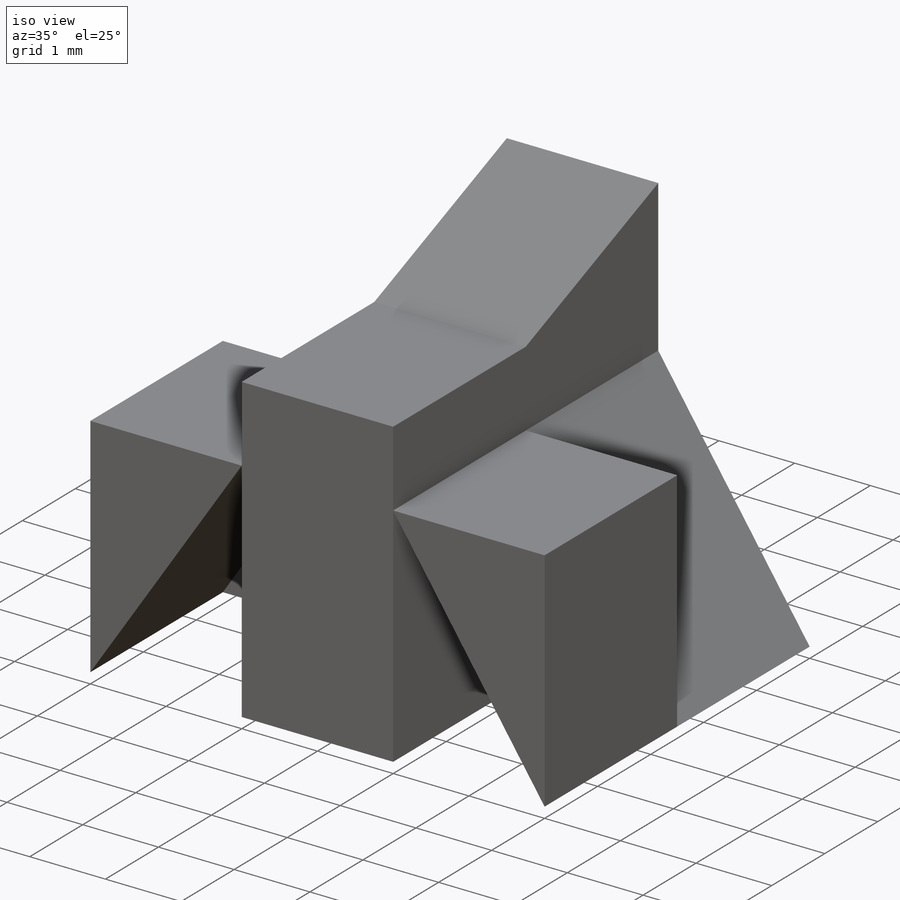
[diagram: iso view]
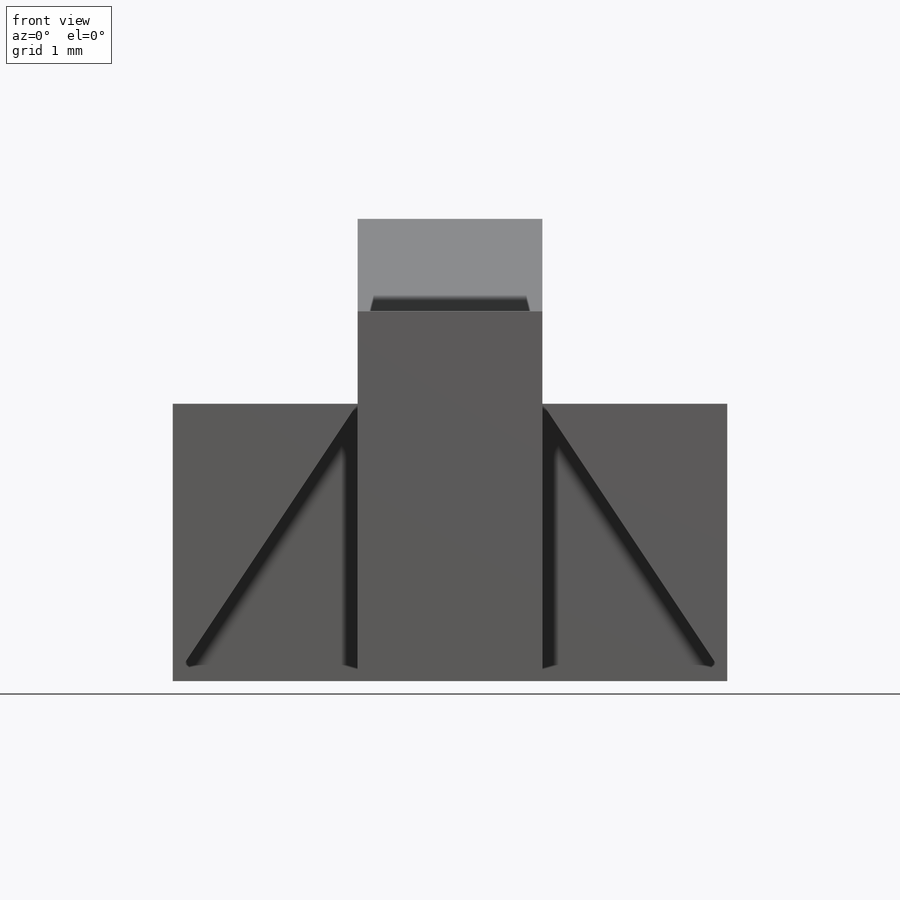
[diagram: front view]
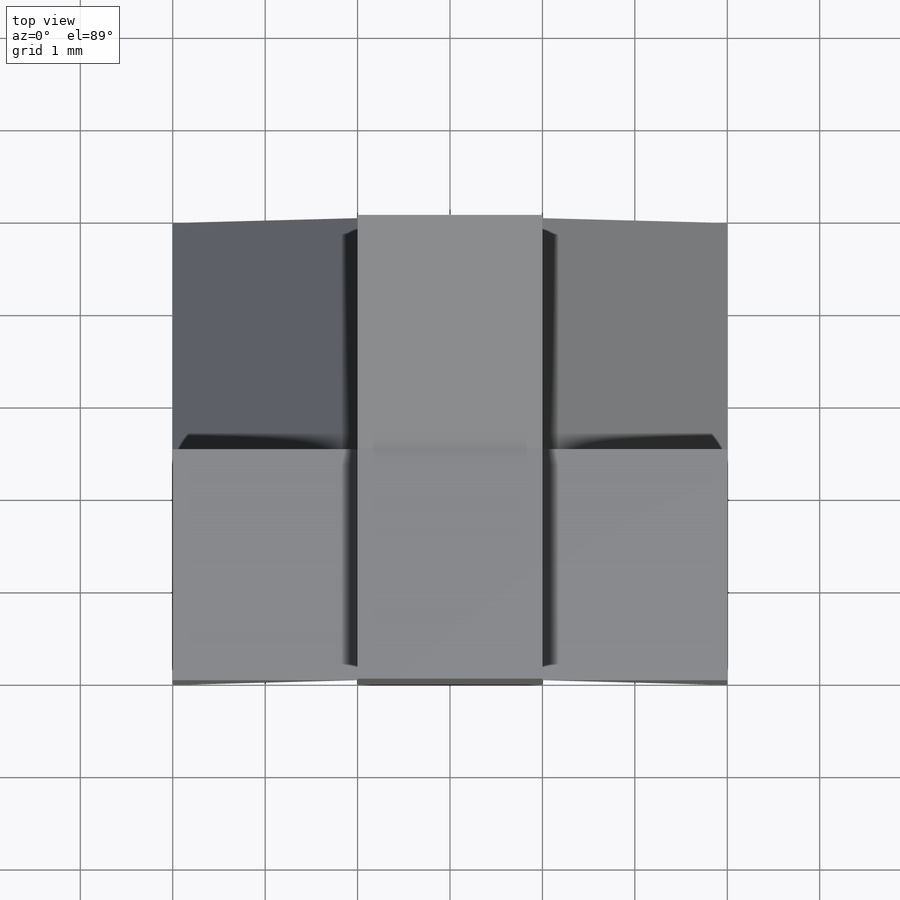
[diagram: top view]
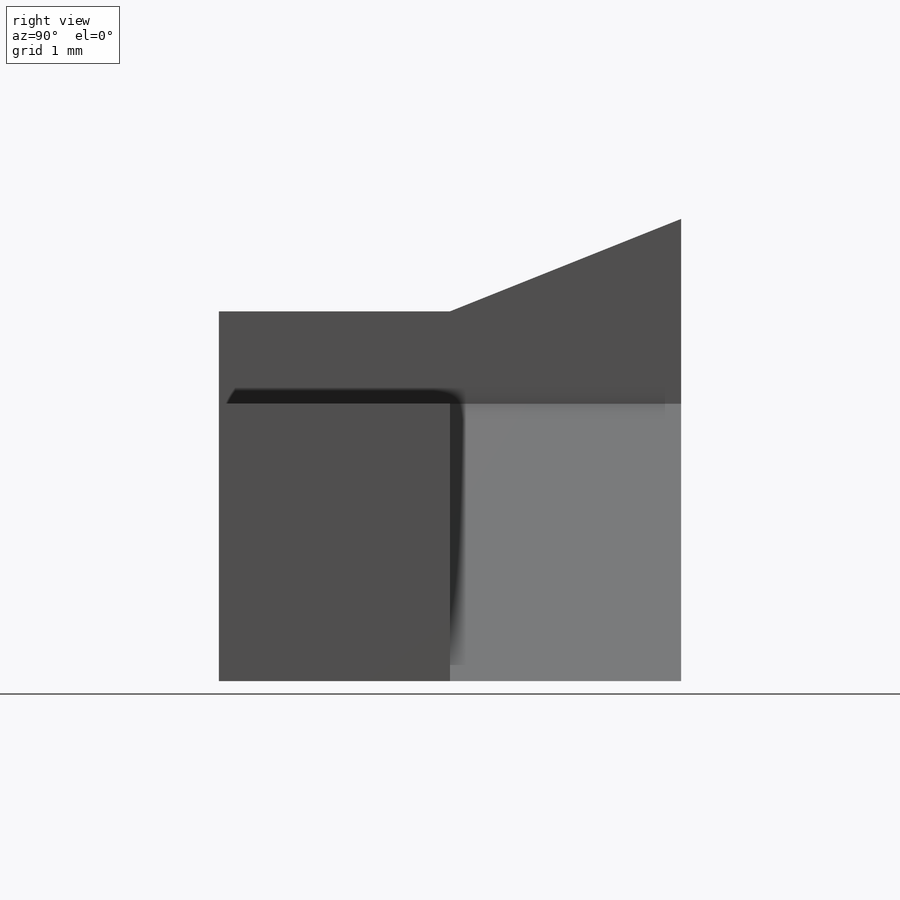
[diagram: right view]
SOLIDWORKS PART (.sldprt)
format: sldprt  version: not decoded by parser v0  size: 206,848 bytes
history: native  units: mm
features: sketch x6, cut_extrude x5, material x1, extrude x1 (+13 scaffold rows collapsed)
feature tree (26):
  scaffold x13  (default folders/planes/origin — collapsed)
  material  "Material <not specified>"
  sketch  "Sketch1"  dims[D1=3.0mm D2=6.0mm D3=2.0mm D4=2.0mm D5=2.0mm]
  extrude  "Boss-Extrude1"  Depth=5mm
  sketch  "Sketch2"  dims[D1=1.0mm D2=2.5mm]
  cut_extrude  "Cut-Extrude2"  Depth=5mm
  sketch  "Sketch8"
  cut_extrude  "Cut-Extrude14"  Depth=2.5mm
  sketch  "Sketch9"
  cut_extrude  "Cut-Extrude15"  Depth=2.5mm
  sketch  "Sketch10"
  sketch  "Sketch11"
  cut_extrude  "Cut-Extrude17"  Depth=2.5mm
  cut_extrude  "Cut-Extrude18"  Depth=2.5mm
decode coverage: 8 of 12 modeling features carry decoded parameters
note: suppression state not decoded; provenance and decode notes live in map.json
